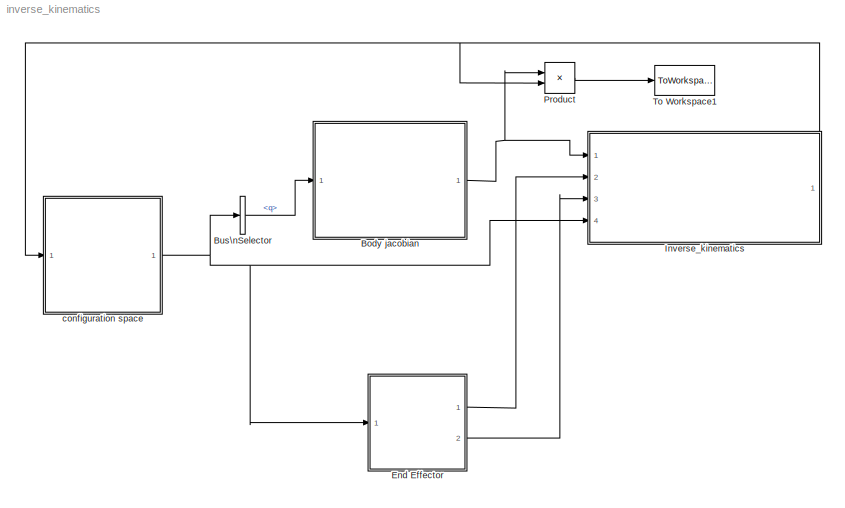
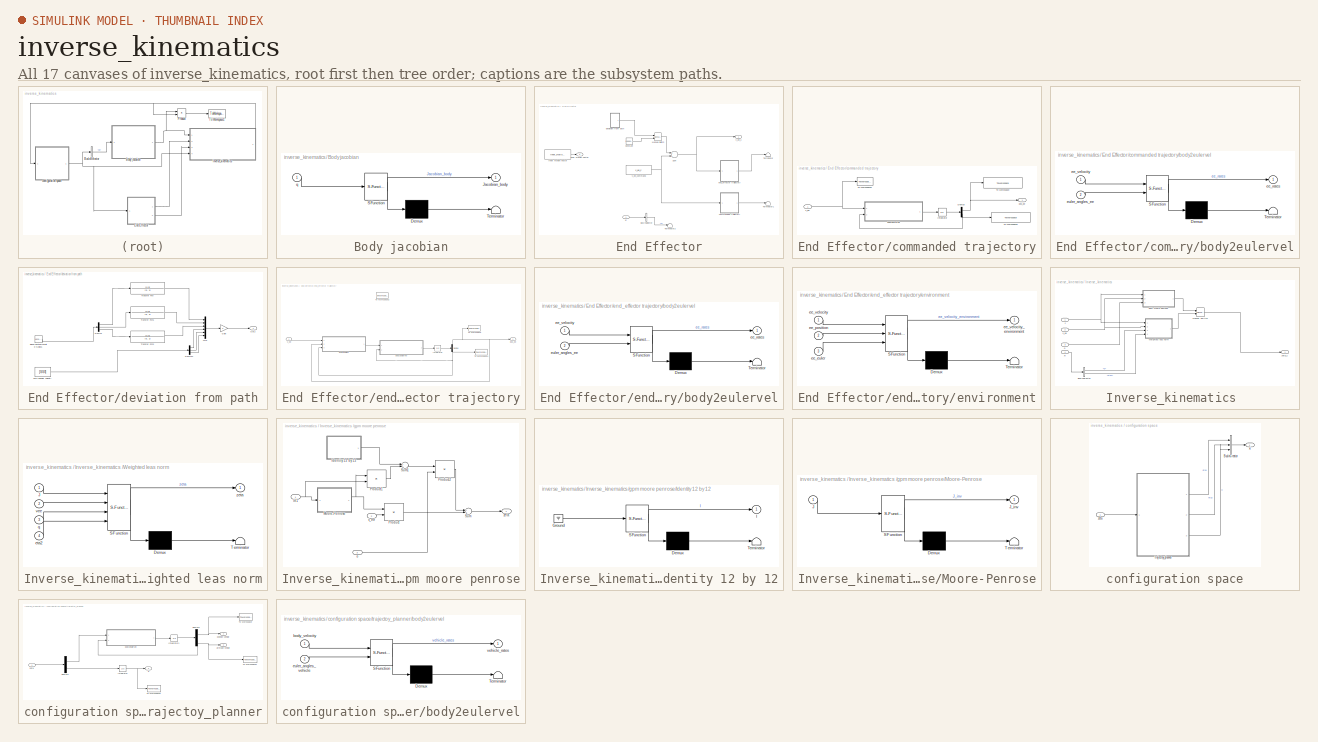
[diagram: thumbnail index - all 17 canvases of the model, root first then tree order]
MODEL inverse_kinematics
KIND model
BLOCK [SubSystem] Body jacobian
  ErrorFcn = Stateflow.Translate.translate
  FunctionWithSeparateData = off
  MaskDescription = Embedded MATLAB block
  MaskDisplay = bgColor = Simulink.Root.ColorString2Rgb(get_param(gcbh, 'BackgroundColor')); image(imread('private/eml_membrane_16.png','png','BackgroundColor',bgColor(1:3)),'center'); disp([10 10 'fcn']);  <repeated x4 — deduplicated; at blocks: Body jacobian, body2eulervel>
  MaskHideContents = off
  MaskIconFrame = on
  MaskIconOpaque = off
  MaskIconRotate = none
  MaskIconUnits = normalized
  MaskPortRotate = default
  MaskSelfModifiable = on
  MaskType = Stateflow
  MinAlgLoopOccurrences = off
  Opaque = off
  PermitHierarchicalResolution = ExplicitOnly
  Ports = [1, 1]
  PropExecContextOutsideSubsystem = off
  RTWSystemCode = Auto
  RequestExecContextInheritance = off
  SFBlockType = MATLAB Function
  SID = 4
  TreatAsAtomicUnit = on
BLOCK [Demux] Body jacobian/ Demux 
  Outputs = 1
  Ports = [1, 1]
  SID = 4::20
BLOCK [S-Function] Body jacobian/ SFunction 
  EnableBusSupport = on
  FunctionName = sf_sfun
  PortCounts = [1 2]
  Ports = [1, 2]
  SID = 4::19
  Tag = Stateflow S-Function inverse_kinematics 2
BLOCK [Terminator] Body jacobian/ Terminator 
  SID = 4::22
BLOCK [Outport] Body jacobian/Jacobian_body
  IconDisplay = Port number
  SID = 4::5
BLOCK [Inport] Body jacobian/q
  IconDisplay = Port number
  SID = 4::1
BLOCK [BusSelector] Bus\nSelector
  OutputSignals = q
  Ports = [1, 1]
  SID = 71
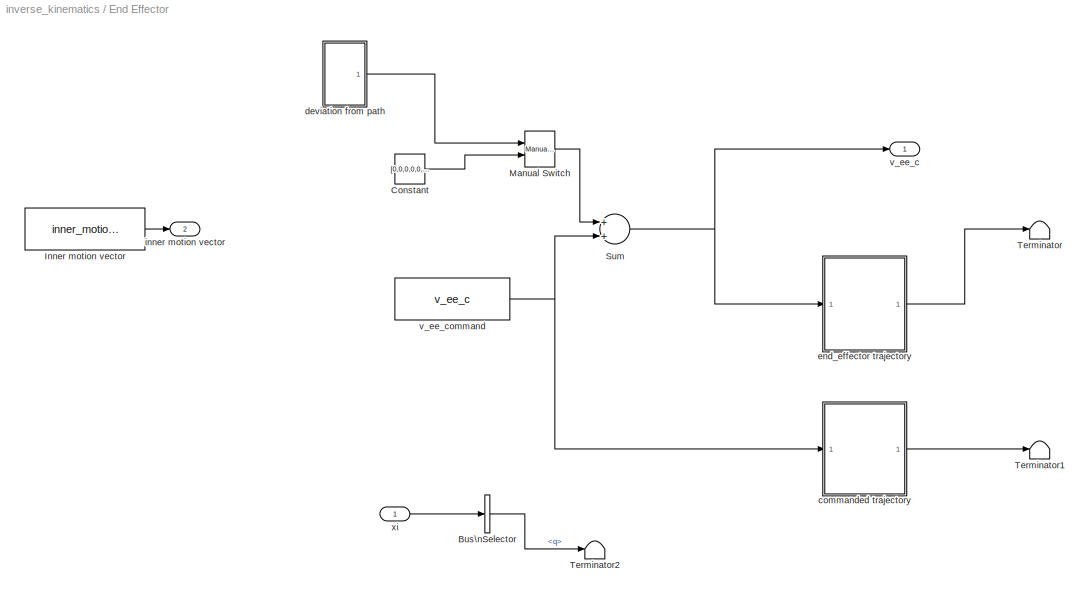
BLOCK [SubSystem] End Effector
  FunctionWithSeparateData = off
  MaskHideContents = off
  MinAlgLoopOccurrences = off
  Opaque = off
  Ports = [1, 2]
  PropExecContextOutsideSubsystem = off
  RTWSystemCode = Auto
  RequestExecContextInheritance = off
  SID = 165
BLOCK [BusSelector] End Effector/Bus\nSelector
  OutputSignals = q
  Ports = [1, 1]
  SID = 219
BLOCK [Constant] End Effector/Constant
  SID = 216
  Value = [0,0,0,0,0,0]
BLOCK [Constant] End Effector/Inner motion vector
  SID = 115
  Value = inner_motion_vec
BLOCK [Reference] End Effector/Manual Switch  REF=simulink/Signal\nRouting/Manual Switch
  Ports = [2, 1]
  SID = 217
  SourceBlock = simulink/Signal\nRouting/Manual Switch
  SourceType = Manual Switch
  action = 0
  sw = 0
  varsize = off
BLOCK [Sum] End Effector/Sum
  InputSameDT = off
  OutDataTypeStr = Inherit: Inherit via internal rule
  Ports = [2, 1]
  SID = 172
  SaturateOnIntegerOverflow = off
BLOCK [Terminator] End Effector/Terminator
  SID = 184
BLOCK [Terminator] End Effector/Terminator1
  SID = 185
BLOCK [Terminator] End Effector/Terminator2
  SID = 221
BLOCK [SubSystem] End Effector/commanded trajectory
  FunctionWithSeparateData = off
  MaskHideContents = off
  MinAlgLoopOccurrences = off
  Opaque = off
  Ports = [1, 1]
  PropExecContextOutsideSubsystem = off
  RTWSystemCode = Auto
  RequestExecContextInheritance = off
  SID = 175
BLOCK [Demux] End Effector/commanded trajectory/Demux
  DisplayOption = bar
  Outputs = 2
  Ports = [1, 2]
  SID = 177
BLOCK [Integrator] End Effector/commanded trajectory/Integrator
  InitialCondition = initial_ee_pose
  Ports = [1, 1]
  SID = 178
BLOCK [ToWorkspace] End Effector/commanded trajectory/To Workspace
  MaxDataPoints = inf
  Ports = [1]
  SID = 179
  SampleTime = -1
  SaveFormat = Structure With Time
  VariableName = ee_pos_commanded_s
BLOCK [ToWorkspace] End Effector/commanded trajectory/To Workspace1
  MaxDataPoints = inf
  Ports = [1]
  SID = 180
  SampleTime = -1
  SaveFormat = Structure With Time
  VariableName = ee_euler_commanded_s
BLOCK [ToWorkspace] End Effector/commanded trajectory/To Workspace2
  MaxDataPoints = inf
  Ports = [1]
  SID = 181
  SampleTime = -1
  SaveFormat = Structure With Time
  VariableName = ee_vel_commanded_s
BLOCK [SubSystem] End Effector/commanded trajectory/body2eulervel
  ErrorFcn = Stateflow.Translate.translate
  FunctionWithSeparateData = off
  MaskDescription = Embedded MATLAB block
  MaskHideContents = off
  MaskIconFrame = on
  MaskIconOpaque = off
  MaskIconRotate = none
  MaskIconUnits = normalized
  MaskPortRotate = default
  MaskSelfModifiable = on
  MaskType = Stateflow
  MinAlgLoopOccurrences = off
  Opaque = off
  PermitHierarchicalResolution = ExplicitOnly
  Ports = [2, 1]
  PropExecContextOutsideSubsystem = off
  RTWSystemCode = Auto
  RequestExecContextInheritance = off
  SFBlockType = MATLAB Function
  SID = 182
  TreatAsAtomicUnit = on
BLOCK [Demux] End Effector/commanded trajectory/body2eulervel/ Demux 
  Outputs = 1
  Ports = [1, 1]
  SID = 182::20
BLOCK [S-Function] End Effector/commanded trajectory/body2eulervel/ SFunction 
  EnableBusSupport = on
  FunctionName = sf_sfun
  PortCounts = [2 2]
  Ports = [2, 2]
  SID = 182::19
  Tag = Stateflow S-Function inverse_kinematics 7
BLOCK [Terminator] End Effector/commanded trajectory/body2eulervel/ Terminator 
  SID = 182::22
BLOCK [Outport] End Effector/commanded trajectory/body2eulervel/ee_rates
  IconDisplay = Port number
  SID = 182::5
BLOCK [Inport] End Effector/commanded trajectory/body2eulervel/ee_velocity
  IconDisplay = Port number
  SID = 182::1
BLOCK [Inport] End Effector/commanded trajectory/body2eulervel/euler_angles_ee
  IconDisplay = Port number
  Port = 2
  SID = 182::23
BLOCK [Outport] End Effector/commanded trajectory/pos_ee
  IconDisplay = Port number
  SID = 183
BLOCK [Inport] End Effector/commanded trajectory/v_ee
  IconDisplay = Port number
  SID = 176
BLOCK [SubSystem] End Effector/deviation from path
  FunctionWithSeparateData = off
  MaskHideContents = off
  MinAlgLoopOccurrences = off
  Opaque = off
  Ports = [0, 1]
  PropExecContextOutsideSubsystem = off
  RTWSystemCode = Auto
  RequestExecContextInheritance = off
  SID = 192
BLOCK [Reference] End Effector/deviation from path/Band-Limited\nWhite Noise1  REF=simulink/Sources/Band-Limited\nWhite Noise
  Cov = [0.1;0.1;0.05]
  Ports = [0, 1]
  SID = 186
  SourceBlock = simulink/Sources/Band-Limited\nWhite Noise
  SourceType = Band-Limited White Noise.
  Ts = 0.001
  VectorParams1D = on
  seed = [23341]
BLOCK [Demux] End Effector/deviation from path/Demux
  DisplayOption = bar
  Outputs = 3
  Ports = [1, 3]
  SID = 189
BLOCK [Demux] End Effector/deviation from path/Demux1
  DisplayOption = bar
  Outputs = 3
  Ports = [1, 3]
  SID = 205
BLOCK [Gain] End Effector/deviation from path/Gain
  OutDataTypeStr = Inherit: Inherit via internal rule
  ParamDataTypeStr = Inherit: Inherit via internal rule
  SID = 206
  SaturateOnIntegerOverflow = off
BLOCK [Mux] End Effector/deviation from path/Mux
  DisplayOption = bar
  Inputs = 6
  Ports = [6, 1]
  SID = 190
BLOCK [Outport] End Effector/deviation from path/Out2
  IconDisplay = Port number
  SID = 195
BLOCK [TransferFcn] End Effector/deviation from path/Transfer Fcn
  Denominator = [5, 1]
  Numerator = [0.5]
  SID = 171
BLOCK [TransferFcn] End Effector/deviation from path/Transfer Fcn1
  Denominator = [5, 1]
  Numerator = [0.5]
  SID = 212
BLOCK [TransferFcn] End Effector/deviation from path/Transfer Fcn2
  Denominator = [5, 1]
  Numerator = [0.5]
  SID = 213
BLOCK [Constant] End Effector/deviation from path/zero angular velocity
  SID = 204
  Value = [0;0;0]
BLOCK [SubSystem] End Effector/end_effector trajectory
  FunctionWithSeparateData = off
  MaskHideContents = off
  MinAlgLoopOccurrences = off
  Opaque = off
  Ports = [1, 1]
  PropExecContextOutsideSubsystem = off
  RTWSystemCode = Auto
  RequestExecContextInheritance = off
  SID = 132
BLOCK [Demux] End Effector/end_effector trajectory/Demux
  DisplayOption = bar
  Outputs = 2
  Ports = [1, 2]
  SID = 135
BLOCK [Integrator] End Effector/end_effector trajectory/Integrator
  InitialCondition = initial_ee_pose
  Ports = [1, 1]
  SID = 136
BLOCK [ToWorkspace] End Effector/end_effector trajectory/To Workspace
  MaxDataPoints = inf
  Ports = [1]
  SID = 138
  SampleTime = -1
  SaveFormat = Structure With Time
  VariableName = ee_pos_s
BLOCK [ToWorkspace] End Effector/end_effector trajectory/To Workspace1
  MaxDataPoints = inf
  Ports = [1]
  SID = 139
  SampleTime = -1
  SaveFormat = Structure With Time
  VariableName = ee_euler_s
BLOCK [ToWorkspace] End Effector/end_effector trajectory/To Workspace2
  MaxDataPoints = inf
  Ports = [1]
  SID = 140
  SampleTime = -1
  SaveFormat = Structure With Time
  VariableName = ee_vel_s
BLOCK [SubSystem] End Effector/end_effector trajectory/body2eulervel
  ErrorFcn = Stateflow.Translate.translate
  FunctionWithSeparateData = off
  MaskDescription = Embedded MATLAB block
  MaskHideContents = off
  MaskIconFrame = on
  MaskIconOpaque = off
  MaskIconRotate = none
  MaskIconUnits = normalized
  MaskPortRotate = default
  MaskSelfModifiable = on
  MaskType = Stateflow
  MinAlgLoopOccurrences = off
  Opaque = off
  PermitHierarchicalResolution = ExplicitOnly
  Ports = [2, 1]
  PropExecContextOutsideSubsystem = off
  RTWSystemCode = Auto
  RequestExecContextInheritance = off
  SFBlockType = MATLAB Function
  SID = 141
  TreatAsAtomicUnit = on
BLOCK [Demux] End Effector/end_effector trajectory/body2eulervel/ Demux 
  Outputs = 1
  Ports = [1, 1]
  SID = 141::20
BLOCK [S-Function] End Effector/end_effector trajectory/body2eulervel/ SFunction 
  EnableBusSupport = on
  FunctionName = sf_sfun
  PortCounts = [2 2]
  Ports = [2, 2]
  SID = 141::19
  Tag = Stateflow S-Function inverse_kinematics 5
BLOCK [Terminator] End Effector/end_effector trajectory/body2eulervel/ Terminator 
  SID = 141::22
BLOCK [Outport] End Effector/end_effector trajectory/body2eulervel/ee_rates
  IconDisplay = Port number
  SID = 141::5
BLOCK [Inport] End Effector/end_effector trajectory/body2eulervel/ee_velocity
  IconDisplay = Port number
  SID = 141::1
BLOCK [Inport] End Effector/end_effector trajectory/body2eulervel/euler_angles_ee
  IconDisplay = Port number
  Port = 2
  SID = 141::23
BLOCK [SubSystem] End Effector/end_effector trajectory/environment
  ErrorFcn = Stateflow.Translate.translate
  FunctionWithSeparateData = off
  MaskDescription = Embedded MATLAB block
  MaskDisplay = bgColor = Simulink.Root.ColorString2Rgb(get_param(gcbh, 'BackgroundColor')); image(imread('private/eml_membrane_16.png','png','BackgroundColor',bgColor(1:3)),'center'); disp([10 10 'velocity']);
  MaskHideContents = off
  MaskIconFrame = on
  MaskIconOpaque = off
  MaskIconRotate = none
  MaskIconUnits = normalized
  MaskPortRotate = default
  MaskSelfModifiable = on
  MaskType = Stateflow
  MinAlgLoopOccurrences = off
  Opaque = off
  PermitHierarchicalResolution = ExplicitOnly
  Ports = [3, 1]
  PropExecContextOutsideSubsystem = off
  RTWSystemCode = Auto
  RequestExecContextInheritance = off
  SFBlockType = MATLAB Function
  SID = 214
  TreatAsAtomicUnit = on
BLOCK [Demux] End Effector/end_effector trajectory/environment/ Demux 
  Outputs = 1
  Ports = [1, 1]
  SID = 214::20
BLOCK [S-Function] End Effector/end_effector trajectory/environment/ SFunction 
  EnableBusSupport = on
  FunctionName = sf_sfun
  PortCounts = [3 2]
  Ports = [3, 2]
  SID = 214::19
  Tag = Stateflow S-Function inverse_kinematics 8
BLOCK [Terminator] End Effector/end_effector trajectory/environment/ Terminator 
  SID = 214::22
BLOCK [Inport] End Effector/end_effector trajectory/environment/ee_euler
  IconDisplay = Port number
  Port = 3
  SID = 214::28
BLOCK [Inport] End Effector/end_effector trajectory/environment/ee_position
  IconDisplay = Port number
  Port = 2
  SID = 214::26
BLOCK [Inport] End Effector/end_effector trajectory/environment/ee_velocity
  IconDisplay = Port number
  SID = 214::25
BLOCK [Outport] End Effector/end_effector trajectory/environment/ee_velocity_environment
  IconDisplay = Port number
  SID = 214::27
BLOCK [Outport] End Effector/end_effector trajectory/pos_ee
  IconDisplay = Port number
  SID = 173
BLOCK [Inport] End Effector/end_effector trajectory/v_ee
  IconDisplay = Port number
  SID = 134
BLOCK [Outport] End Effector/inner motion vector
  IconDisplay = Port number
  Port = 2
  SID = 167
BLOCK [Outport] End Effector/v_ee_c
  IconDisplay = Port number
  SID = 166
BLOCK [Constant] End Effector/v_ee_command
  SID = 103
  Value = v_ee_c
BLOCK [Inport] End Effector/xi
  IconDisplay = Port number
  SID = 218
BLOCK [SubSystem] Inverse_kinematics 
  FunctionWithSeparateData = off
  MaskHideContents = off
  MinAlgLoopOccurrences = off
  Opaque = off
  Ports = [4, 1]
  PropExecContextOutsideSubsystem = off
  RTWSystemCode = Auto
  RequestExecContextInheritance = off
  SID = 111
BLOCK [BusSelector] Inverse_kinematics /Bus\nSelector
  OutputSignals = q,eta2
  Ports = [1, 2]
  SID = 154
BLOCK [Inport] Inverse_kinematics /J
  IconDisplay = Port number
  SID = 112
BLOCK [Reference] Inverse_kinematics /Manual Switch  REF=simulink/Signal\nRouting/Manual Switch
  Ports = [2, 1]
  SID = 152
  SourceBlock = simulink/Signal\nRouting/Manual Switch
  SourceType = Manual Switch
  action = 0
  sw = 0
  varsize = off
BLOCK [SubSystem] Inverse_kinematics /Weighted leas norm
  ErrorFcn = Stateflow.Translate.translate
  FunctionWithSeparateData = off
  MaskDescription = Embedded MATLAB block
  MaskDisplay = bgColor = Simulink.Root.ColorString2Rgb(get_param(gcbh, 'BackgroundColor')); image(imread('private/eml_membrane_16.png','png','BackgroundColor',bgColor(1:3)),'center'); disp([10 10 'wln']);
  MaskHideContents = off
  MaskIconFrame = on
  MaskIconOpaque = off
  MaskIconRotate = none
  MaskIconUnits = normalized
  MaskPortRotate = default
  MaskSelfModifiable = on
  MaskType = Stateflow
  MinAlgLoopOccurrences = off
  Opaque = off
  PermitHierarchicalResolution = ExplicitOnly
  Ports = [4, 1]
  PropExecContextOutsideSubsystem = off
  RTWSystemCode = Auto
  RequestExecContextInheritance = off
  SFBlockType = MATLAB Function
  SID = 151
  TreatAsAtomicUnit = on
BLOCK [Demux] Inverse_kinematics /Weighted leas norm/ Demux 
  Outputs = 1
  Ports = [1, 1]
  SID = 151::20
BLOCK [S-Function] Inverse_kinematics /Weighted leas norm/ SFunction 
  EnableBusSupport = on
  FunctionName = sf_sfun
  PortCounts = [4 2]
  Ports = [4, 2]
  SID = 151::19
  Tag = Stateflow S-Function inverse_kinematics 6
BLOCK [Terminator] Inverse_kinematics /Weighted leas norm/ Terminator 
  SID = 151::22
BLOCK [Inport] Inverse_kinematics /Weighted leas norm/J
  IconDisplay = Port number
  SID = 151::1
BLOCK [Inport] Inverse_kinematics /Weighted leas norm/eta2
  IconDisplay = Port number
  Port = 4
  SID = 151::25
BLOCK [Inport] Inverse_kinematics /Weighted leas norm/q
  IconDisplay = Port number
  Port = 3
  SID = 151::24
BLOCK [Inport] Inverse_kinematics /Weighted leas norm/vee
  IconDisplay = Port number
  Port = 2
  SID = 151::23
BLOCK [Outport] Inverse_kinematics /Weighted leas norm/zeta
  IconDisplay = Port number
  SID = 151::5
BLOCK [SubSystem] Inverse_kinematics /gpm moore penrose
  FunctionWithSeparateData = off
  MaskHideContents = off
  MinAlgLoopOccurrences = off
  Opaque = off
  Ports = [3, 1]
  PropExecContextOutsideSubsystem = off
  RTWSystemCode = Auto
  RequestExecContextInheritance = off
  SID = 146
BLOCK [SubSystem] Inverse_kinematics /gpm moore penrose/Identity 12 by 12
  ErrorFcn = Stateflow.Translate.translate
  FunctionWithSeparateData = off
  MaskDescription = Embedded MATLAB block
  MaskDisplay = bgColor = Simulink.Root.ColorString2Rgb(get_param(gcbh, 'BackgroundColor')); image(imread('private/eml_membrane_16.png','png','BackgroundColor',bgColor(1:3)),'center'); disp([10 10 'Identity_mat']);
  MaskHideContents = off
  MaskIconFrame = on
  MaskIconOpaque = off
  MaskIconRotate = none
  MaskIconUnits = normalized
  MaskPortRotate = default
  MaskSelfModifiable = on
  MaskType = Stateflow
  MinAlgLoopOccurrences = off
  Opaque = off
  PermitHierarchicalResolution = ExplicitOnly
  Ports = [0, 1]
  PropExecContextOutsideSubsystem = off
  RTWSystemCode = Auto
  RequestExecContextInheritance = off
  SFBlockType = MATLAB Function
  SID = 106
  TreatAsAtomicUnit = on
BLOCK [Demux] Inverse_kinematics /gpm moore penrose/Identity 12 by 12/ Demux 
  Outputs = 1
  Ports = [1, 1]
  SID = 106::20
BLOCK [Ground] Inverse_kinematics /gpm moore penrose/Identity 12 by 12/ Ground 
  SID = 106::23
BLOCK [S-Function] Inverse_kinematics /gpm moore penrose/Identity 12 by 12/ SFunction 
  EnableBusSupport = on
  FunctionName = sf_sfun
  PortCounts = [1 2]
  Ports = [1, 2]
  SID = 106::19
  Tag = Stateflow S-Function inverse_kinematics 1
BLOCK [Terminator] Inverse_kinematics /gpm moore penrose/Identity 12 by 12/ Terminator 
  SID = 106::22
BLOCK [Outport] Inverse_kinematics /gpm moore penrose/Identity 12 by 12/I
  IconDisplay = Port number
  SID = 106::5
BLOCK [Inport] Inverse_kinematics /gpm moore penrose/In1
  IconDisplay = Port number
  SID = 147
BLOCK [SubSystem] Inverse_kinematics /gpm moore penrose/Moore-Penrose
  ErrorFcn = Stateflow.Translate.translate
  FunctionWithSeparateData = off
  MaskDescription = Embedded MATLAB block
  MaskDisplay = bgColor = Simulink.Root.ColorString2Rgb(get_param(gcbh, 'BackgroundColor')); image(imread('private/eml_membrane_16.png','png','BackgroundColor',bgColor(1:3)),'center'); disp([10 10 'moore_penrose']);
  MaskHideContents = off
  MaskIconFrame = on
  MaskIconOpaque = off
  MaskIconRotate = none
  MaskIconUnits = normalized
  MaskPortRotate = default
  MaskSelfModifiable = on
  MaskType = Stateflow
  MinAlgLoopOccurrences = off
  Opaque = off
  PermitHierarchicalResolution = ExplicitOnly
  Ports = [1, 1]
  PropExecContextOutsideSubsystem = off
  RTWSystemCode = Auto
  RequestExecContextInheritance = off
  SFBlockType = MATLAB Function
  SID = 102
  TreatAsAtomicUnit = on
BLOCK [Demux] Inverse_kinematics /gpm moore penrose/Moore-Penrose/ Demux 
  Outputs = 1
  Ports = [1, 1]
  SID = 102::20
BLOCK [S-Function] Inverse_kinematics /gpm moore penrose/Moore-Penrose/ SFunction 
  EnableBusSupport = on
  FunctionName = sf_sfun
  PortCounts = [1 2]
  Ports = [1, 2]
  SID = 102::19
  Tag = Stateflow S-Function inverse_kinematics 4
BLOCK [Terminator] Inverse_kinematics /gpm moore penrose/Moore-Penrose/ Terminator 
  SID = 102::22
BLOCK [Inport] Inverse_kinematics /gpm moore penrose/Moore-Penrose/J
  IconDisplay = Port number
  SID = 102::1
BLOCK [Outport] Inverse_kinematics /gpm moore penrose/Moore-Penrose/J_inv
  IconDisplay = Port number
  SID = 102::5
BLOCK [Product] Inverse_kinematics /gpm moore penrose/Product
  InputSameDT = off
  Multiplication = Matrix(*)
  OutDataTypeStr = Inherit: Inherit via internal rule
  Ports = [2, 1]
  SID = 104
  SaturateOnIntegerOverflow = off
BLOCK [Product] Inverse_kinematics /gpm moore penrose/Product1
  InputSameDT = off
  Multiplication = Matrix(*)
  OutDataTypeStr = Inherit: Inherit via internal rule
  Ports = [2, 1]
  SID = 108
  SaturateOnIntegerOverflow = off
BLOCK [Product] Inverse_kinematics /gpm moore penrose/Product2
  InputSameDT = off
  Multiplication = Matrix(*)
  OutDataTypeStr = Inherit: Inherit via internal rule
  Ports = [2, 1]
  SID = 109
  SaturateOnIntegerOverflow = off
BLOCK [Sum] Inverse_kinematics /gpm moore penrose/Sum
  InputSameDT = off
  OutDataTypeStr = Inherit: Inherit via internal rule
  Ports = [2, 1]
  SID = 105
  SaturateOnIntegerOverflow = off
BLOCK [Sum] Inverse_kinematics /gpm moore penrose/Sum1
  InputSameDT = off
  Inputs = +-
  OutDataTypeStr = Inherit: Inherit via internal rule
  Ports = [2, 1]
  SID = 107
  SaturateOnIntegerOverflow = off
BLOCK [Inport] Inverse_kinematics /gpm moore penrose/o
  IconDisplay = Port number
  Port = 3
  SID = 149
BLOCK [Inport] Inverse_kinematics /gpm moore penrose/v_ee
  IconDisplay = Port number
  Port = 2
  SID = 148
BLOCK [Outport] Inverse_kinematics /gpm moore penrose/zeta
  IconDisplay = Port number
  SID = 150
BLOCK [Inport] Inverse_kinematics /o
  IconDisplay = Port number
  Port = 3
  SID = 117
BLOCK [Inport] Inverse_kinematics /v_ee
  IconDisplay = Port number
  Port = 2
  SID = 114
BLOCK [Inport] Inverse_kinematics /xi
  IconDisplay = Port number
  Port = 4
  SID = 153
BLOCK [Outport] Inverse_kinematics /zeta_c
  IconDisplay = Port number
  SID = 113
BLOCK [Product] Product
  InputSameDT = off
  Multiplication = Matrix(*)
  OutDataTypeStr = Inherit: Inherit via internal rule
  Ports = [2, 1]
  SID = 142
  SaturateOnIntegerOverflow = off
BLOCK [ToWorkspace] To Workspace1
  MaxDataPoints = inf
  Ports = [1]
  SID = 144
  SampleTime = -1
  SaveFormat = Structure With Time
  VariableName = v_ee_res
BLOCK [SubSystem] configuration space
  FunctionWithSeparateData = off
  MaskHideContents = off
  MinAlgLoopOccurrences = off
  Opaque = off
  Ports = [1, 1]
  PropExecContextOutsideSubsystem = off
  RTWSystemCode = Auto
  RequestExecContextInheritance = off
  SID = 11
BLOCK [BusCreator] configuration space/Bus\nCreator
  DisplayOption = bar
  Inputs = 3
  Ports = [3, 1]
  SID = 68
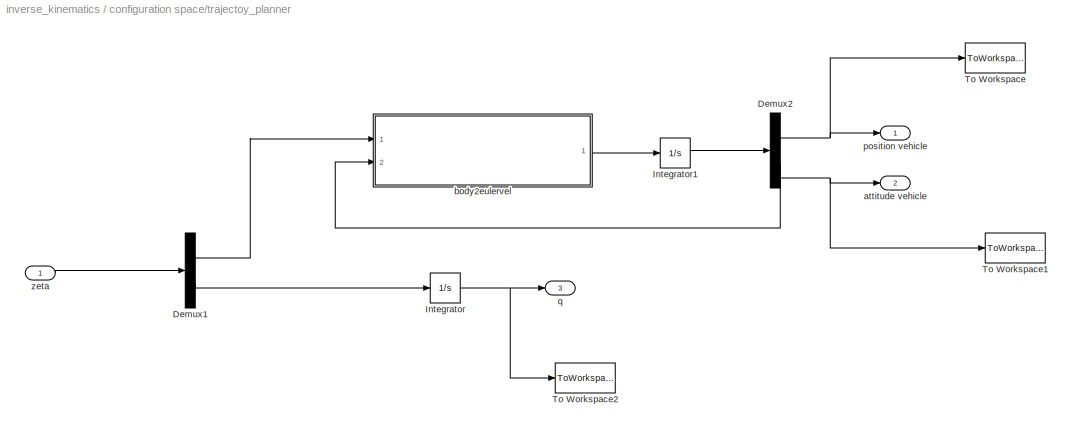
BLOCK [SubSystem] configuration space/trajectoy_planner
  FunctionWithSeparateData = off
  MaskHideContents = off
  MinAlgLoopOccurrences = off
  Opaque = off
  Ports = [1, 3]
  PropExecContextOutsideSubsystem = off
  RTWSystemCode = Auto
  RequestExecContextInheritance = off
  SID = 53
BLOCK [Demux] configuration space/trajectoy_planner/Demux1
  DisplayOption = bar
  Outputs = 2
  Ports = [1, 2]
  SID = 47
BLOCK [Demux] configuration space/trajectoy_planner/Demux2
  DisplayOption = bar
  Outputs = 2
  Ports = [1, 2]
  SID = 59
BLOCK [Integrator] configuration space/trajectoy_planner/Integrator
  InitialCondition = initial_q
  Ports = [1, 1]
  SID = 50
BLOCK [Integrator] configuration space/trajectoy_planner/Integrator1
  InitialCondition = initial_eta
  Ports = [1, 1]
  SID = 60
BLOCK [ToWorkspace] configuration space/trajectoy_planner/To Workspace
  MaxDataPoints = inf
  Ports = [1]
  SID = 82
  SampleTime = -1
  SaveFormat = Structure With Time
  VariableName = eta1_s
BLOCK [ToWorkspace] configuration space/trajectoy_planner/To Workspace1
  MaxDataPoints = inf
  Ports = [1]
  SID = 83
  SampleTime = -1
  SaveFormat = Structure With Time
  VariableName = eta2_s
BLOCK [ToWorkspace] configuration space/trajectoy_planner/To Workspace2
  MaxDataPoints = inf
  Ports = [1]
  SID = 84
  SampleTime = -1
  SaveFormat = Structure With Time
  VariableName = q_s
BLOCK [Outport] configuration space/trajectoy_planner/attitude vehicle
  IconDisplay = Port number
  Port = 2
  SID = 61
BLOCK [SubSystem] configuration space/trajectoy_planner/body2eulervel
  ErrorFcn = Stateflow.Translate.translate
  FunctionWithSeparateData = off
  MaskDescription = Embedded MATLAB block
  MaskHideContents = off
  MaskIconFrame = on
  MaskIconOpaque = off
  MaskIconRotate = none
  MaskIconUnits = normalized
  MaskPortRotate = default
  MaskSelfModifiable = on
  MaskType = Stateflow
  MinAlgLoopOccurrences = off
  Opaque = off
  PermitHierarchicalResolution = ExplicitOnly
  Ports = [2, 1]
  PropExecContextOutsideSubsystem = off
  RTWSystemCode = Auto
  RequestExecContextInheritance = off
  SFBlockType = MATLAB Function
  SID = 52
  TreatAsAtomicUnit = on
BLOCK [Demux] configuration space/trajectoy_planner/body2eulervel/ Demux 
  Outputs = 1
  Ports = [1, 1]
  SID = 52::20
BLOCK [S-Function] configuration space/trajectoy_planner/body2eulervel/ SFunction 
  EnableBusSupport = on
  FunctionName = sf_sfun
  PortCounts = [2 2]
  Ports = [2, 2]
  SID = 52::19
  Tag = Stateflow S-Function inverse_kinematics 3
BLOCK [Terminator] configuration space/trajectoy_planner/body2eulervel/ Terminator 
  SID = 52::22
BLOCK [Inport] configuration space/trajectoy_planner/body2eulervel/body_velocity
  IconDisplay = Port number
  SID = 52::1
BLOCK [Inport] configuration space/trajectoy_planner/body2eulervel/euler_angles_vehicle
  IconDisplay = Port number
  Port = 2
  SID = 52::23
BLOCK [Outport] configuration space/trajectoy_planner/body2eulervel/vehicle_rates
  IconDisplay = Port number
  SID = 52::5
BLOCK [Outport] configuration space/trajectoy_planner/position vehicle
  IconDisplay = Port number
  SID = 54
BLOCK [Outport] configuration space/trajectoy_planner/q
  IconDisplay = Port number
  Port = 3
  SID = 58
BLOCK [Inport] configuration space/trajectoy_planner/zeta
  IconDisplay = Port number
  SID = 130
BLOCK [Outport] configuration space/xi
  IconDisplay = Port number
  SID = 69
BLOCK [Inport] configuration space/zeta
  IconDisplay = Port number
  SID = 131
LINE Body jacobian/ Demux :1 -> Body jacobian/ Terminator :1
LINE Body jacobian/ SFunction :1 -> Body jacobian/ Demux :1
LINE Body jacobian/ SFunction :2 -> Body jacobian/Jacobian_body:1
LINE Body jacobian/q:1 -> Body jacobian/ SFunction :1
NET Body jacobian:1 -> Inverse_kinematics :1, Product:1
LINE Bus\nSelector:1 -> Body jacobian:1
LINE End Effector/Bus\nSelector:1 -> End Effector/Terminator2:1
LINE End Effector/Constant:1 -> End Effector/Manual Switch:2
LINE End Effector/Inner motion vector:1 -> End Effector/inner motion vector:1
LINE End Effector/Manual Switch:1 -> End Effector/Sum:1
NET End Effector/Sum:1 -> End Effector/end_effector trajectory:1, End Effector/v_ee_c:1
NET End Effector/commanded trajectory/Demux:1 -> End Effector/commanded trajectory/To Workspace:1, End Effector/commanded trajectory/pos_ee:1
NET End Effector/commanded trajectory/Demux:2 -> End Effector/commanded trajectory/To Workspace1:1, End Effector/commanded trajectory/body2eulervel:2
LINE End Effector/commanded trajectory/Integrator:1 -> End Effector/commanded trajectory/Demux:1
LINE End Effector/commanded trajectory/body2eulervel/ Demux :1 -> End Effector/commanded trajectory/body2eulervel/ Terminator :1
LINE End Effector/commanded trajectory/body2eulervel/ SFunction :1 -> End Effector/commanded trajectory/body2eulervel/ Demux :1
LINE End Effector/commanded trajectory/body2eulervel/ SFunction :2 -> End Effector/commanded trajectory/body2eulervel/ee_rates:1
LINE End Effector/commanded trajectory/body2eulervel/ee_velocity:1 -> End Effector/commanded trajectory/body2eulervel/ SFunction :1
LINE End Effector/commanded trajectory/body2eulervel/euler_angles_ee:1 -> End Effector/commanded trajectory/body2eulervel/ SFunction :2
LINE End Effector/commanded trajectory/body2eulervel:1 -> End Effector/commanded trajectory/Integrator:1
NET End Effector/commanded trajectory/v_ee:1 -> End Effector/commanded trajectory/To Workspace2:1, End Effector/commanded trajectory/body2eulervel:1
LINE End Effector/commanded trajectory:1 -> End Effector/Terminator1:1
LINE End Effector/deviation from path/Band-Limited\nWhite Noise1:1 -> End Effector/deviation from path/Demux:1
LINE End Effector/deviation from path/Demux1:1 -> End Effector/deviation from path/Mux:4
LINE End Effector/deviation from path/Demux1:2 -> End Effector/deviation from path/Mux:5
LINE End Effector/deviation from path/Demux1:3 -> End Effector/deviation from path/Mux:6
LINE End Effector/deviation from path/Demux:1 -> End Effector/deviation from path/Transfer Fcn:1
LINE End Effector/deviation from path/Demux:2 -> End Effector/deviation from path/Transfer Fcn1:1
LINE End Effector/deviation from path/Demux:3 -> End Effector/deviation from path/Transfer Fcn2:1
LINE End Effector/deviation from path/Gain:1 -> End Effector/deviation from path/Out2:1
LINE End Effector/deviation from path/Mux:1 -> End Effector/deviation from path/Gain:1
LINE End Effector/deviation from path/Transfer Fcn1:1 -> End Effector/deviation from path/Mux:2
LINE End Effector/deviation from path/Transfer Fcn2:1 -> End Effector/deviation from path/Mux:3
LINE End Effector/deviation from path/Transfer Fcn:1 -> End Effector/deviation from path/Mux:1
LINE End Effector/deviation from path/zero angular velocity:1 -> End Effector/deviation from path/Demux1:1
LINE End Effector/deviation from path:1 -> End Effector/Manual Switch:1
NET End Effector/end_effector trajectory/Demux:1 -> End Effector/end_effector trajectory/To Workspace:1, End Effector/end_effector trajectory/environment:2, End Effector/end_effector trajectory/pos_ee:1
NET End Effector/end_effector trajectory/Demux:2 -> End Effector/end_effector trajectory/To Workspace1:1, End Effector/end_effector trajectory/body2eulervel:2, End Effector/end_effector trajectory/environment:3
LINE End Effector/end_effector trajectory/Integrator:1 -> End Effector/end_effector trajectory/Demux:1
LINE End Effector/end_effector trajectory/body2eulervel/ Demux :1 -> End Effector/end_effector trajectory/body2eulervel/ Terminator :1
LINE End Effector/end_effector trajectory/body2eulervel/ SFunction :1 -> End Effector/end_effector trajectory/body2eulervel/ Demux :1
LINE End Effector/end_effector trajectory/body2eulervel/ SFunction :2 -> End Effector/end_effector trajectory/body2eulervel/ee_rates:1
LINE End Effector/end_effector trajectory/body2eulervel/ee_velocity:1 -> End Effector/end_effector trajectory/body2eulervel/ SFunction :1
LINE End Effector/end_effector trajectory/body2eulervel/euler_angles_ee:1 -> End Effector/end_effector trajectory/body2eulervel/ SFunction :2
LINE End Effector/end_effector trajectory/body2eulervel:1 -> End Effector/end_effector trajectory/Integrator:1
LINE End Effector/end_effector trajectory/environment/ Demux :1 -> End Effector/end_effector trajectory/environment/ Terminator :1
LINE End Effector/end_effector trajectory/environment/ SFunction :1 -> End Effector/end_effector trajectory/environment/ Demux :1
LINE End Effector/end_effector trajectory/environment/ SFunction :2 -> End Effector/end_effector trajectory/environment/ee_velocity_environment:1
LINE End Effector/end_effector trajectory/environment/ee_euler:1 -> End Effector/end_effector trajectory/environment/ SFunction :3
LINE End Effector/end_effector trajectory/environment/ee_position:1 -> End Effector/end_effector trajectory/environment/ SFunction :2
LINE End Effector/end_effector trajectory/environment/ee_velocity:1 -> End Effector/end_effector trajectory/environment/ SFunction :1
LINE End Effector/end_effector trajectory/environment:1 -> End Effector/end_effector trajectory/body2eulervel:1
LINE End Effector/end_effector trajectory/v_ee:1 -> End Effector/end_effector trajectory/environment:1
LINE End Effector/end_effector trajectory:1 -> End Effector/Terminator:1
NET End Effector/v_ee_command:1 -> End Effector/Sum:2, End Effector/commanded trajectory:1
LINE End Effector/xi:1 -> End Effector/Bus\nSelector:1
LINE End Effector:1 -> Inverse_kinematics :2
LINE End Effector:2 -> Inverse_kinematics :3
LINE Inverse_kinematics /Bus\nSelector:1 -> Inverse_kinematics /Weighted leas norm:3
LINE Inverse_kinematics /Bus\nSelector:2 -> Inverse_kinematics /Weighted leas norm:4
NET Inverse_kinematics /J:1 -> Inverse_kinematics /Weighted leas norm:1, Inverse_kinematics /gpm moore penrose:1
LINE Inverse_kinematics /Manual Switch:1 -> Inverse_kinematics /zeta_c:1
LINE Inverse_kinematics /Weighted leas norm/ Demux :1 -> Inverse_kinematics /Weighted leas norm/ Terminator :1
LINE Inverse_kinematics /Weighted leas norm/ SFunction :1 -> Inverse_kinematics /Weighted leas norm/ Demux :1
LINE Inverse_kinematics /Weighted leas norm/ SFunction :2 -> Inverse_kinematics /Weighted leas norm/zeta:1
LINE Inverse_kinematics /Weighted leas norm/J:1 -> Inverse_kinematics /Weighted leas norm/ SFunction :1
LINE Inverse_kinematics /Weighted leas norm/eta2:1 -> Inverse_kinematics /Weighted leas norm/ SFunction :4
LINE Inverse_kinematics /Weighted leas norm/q:1 -> Inverse_kinematics /Weighted leas norm/ SFunction :3
LINE Inverse_kinematics /Weighted leas norm/vee:1 -> Inverse_kinematics /Weighted leas norm/ SFunction :2
LINE Inverse_kinematics /Weighted leas norm:1 -> Inverse_kinematics /Manual Switch:2
LINE Inverse_kinematics /gpm moore penrose/Identity 12 by 12/ Demux :1 -> Inverse_kinematics /gpm moore penrose/Identity 12 by 12/ Terminator :1
LINE Inverse_kinematics /gpm moore penrose/Identity 12 by 12/ Ground :1 -> Inverse_kinematics /gpm moore penrose/Identity 12 by 12/ SFunction :1
LINE Inverse_kinematics /gpm moore penrose/Identity 12 by 12/ SFunction :1 -> Inverse_kinematics /gpm moore penrose/Identity 12 by 12/ Demux :1
LINE Inverse_kinematics /gpm moore penrose/Identity 12 by 12/ SFunction :2 -> Inverse_kinematics /gpm moore penrose/Identity 12 by 12/I:1
LINE Inverse_kinematics /gpm moore penrose/Identity 12 by 12:1 -> Inverse_kinematics /gpm moore penrose/Sum1:1
NET Inverse_kinematics /gpm moore penrose/In1:1 -> Inverse_kinematics /gpm moore penrose/Moore-Penrose:1, Inverse_kinematics /gpm moore penrose/Product1:2
LINE Inverse_kinematics /gpm moore penrose/Moore-Penrose/ Demux :1 -> Inverse_kinematics /gpm moore penrose/Moore-Penrose/ Terminator :1
LINE Inverse_kinematics /gpm moore penrose/Moore-Penrose/ SFunction :1 -> Inverse_kinematics /gpm moore penrose/Moore-Penrose/ Demux :1
LINE Inverse_kinematics /gpm moore penrose/Moore-Penrose/ SFunction :2 -> Inverse_kinematics /gpm moore penrose/Moore-Penrose/J_inv:1
LINE Inverse_kinematics /gpm moore penrose/Moore-Penrose/J:1 -> Inverse_kinematics /gpm moore penrose/Moore-Penrose/ SFunction :1
NET Inverse_kinematics /gpm moore penrose/Moore-Penrose:1 -> Inverse_kinematics /gpm moore penrose/Product1:1, Inverse_kinematics /gpm moore penrose/Product:1
LINE Inverse_kinematics /gpm moore penrose/Product1:1 -> Inverse_kinematics /gpm moore penrose/Sum1:2
LINE Inverse_kinematics /gpm moore penrose/Product2:1 -> Inverse_kinematics /gpm moore penrose/Sum:1
LINE Inverse_kinematics /gpm moore penrose/Product:1 -> Inverse_kinematics /gpm moore penrose/Sum:2
LINE Inverse_kinematics /gpm moore penrose/Sum1:1 -> Inverse_kinematics /gpm moore penrose/Product2:1
LINE Inverse_kinematics /gpm moore penrose/Sum:1 -> Inverse_kinematics /gpm moore penrose/zeta:1
LINE Inverse_kinematics /gpm moore penrose/o:1 -> Inverse_kinematics /gpm moore penrose/Product2:2
LINE Inverse_kinematics /gpm moore penrose/v_ee:1 -> Inverse_kinematics /gpm moore penrose/Product:2
LINE Inverse_kinematics /gpm moore penrose:1 -> Inverse_kinematics /Manual Switch:1
LINE Inverse_kinematics /o:1 -> Inverse_kinematics /gpm moore penrose:3
NET Inverse_kinematics /v_ee:1 -> Inverse_kinematics /Weighted leas norm:2, Inverse_kinematics /gpm moore penrose:2
LINE Inverse_kinematics /xi:1 -> Inverse_kinematics /Bus\nSelector:1
NET Inverse_kinematics :1 -> Product:2, configuration space:1
LINE Product:1 -> To Workspace1:1
LINE configuration space/Bus\nCreator:1 -> configuration space/xi:1
LINE configuration space/trajectoy_planner/Demux1:1 -> configuration space/trajectoy_planner/body2eulervel:1
LINE configuration space/trajectoy_planner/Demux1:2 -> configuration space/trajectoy_planner/Integrator:1
NET configuration space/trajectoy_planner/Demux2:1 -> configuration space/trajectoy_planner/To Workspace:1, configuration space/trajectoy_planner/position vehicle:1
NET configuration space/trajectoy_planner/Demux2:2 -> configuration space/trajectoy_planner/To Workspace1:1, configuration space/trajectoy_planner/attitude vehicle:1, configuration space/trajectoy_planner/body2eulervel:2
LINE configuration space/trajectoy_planner/Integrator1:1 -> configuration space/trajectoy_planner/Demux2:1
NET configuration space/trajectoy_planner/Integrator:1 -> configuration space/trajectoy_planner/To Workspace2:1, configuration space/trajectoy_planner/q:1
LINE configuration space/trajectoy_planner/body2eulervel/ Demux :1 -> configuration space/trajectoy_planner/body2eulervel/ Terminator :1
LINE configuration space/trajectoy_planner/body2eulervel/ SFunction :1 -> configuration space/trajectoy_planner/body2eulervel/ Demux :1
LINE configuration space/trajectoy_planner/body2eulervel/ SFunction :2 -> configuration space/trajectoy_planner/body2eulervel/vehicle_rates:1
LINE configuration space/trajectoy_planner/body2eulervel/body_velocity:1 -> configuration space/trajectoy_planner/body2eulervel/ SFunction :1
LINE configuration space/trajectoy_planner/body2eulervel/euler_angles_vehicle:1 -> configuration space/trajectoy_planner/body2eulervel/ SFunction :2
LINE configuration space/trajectoy_planner/body2eulervel:1 -> configuration space/trajectoy_planner/Integrator1:1
LINE configuration space/trajectoy_planner/zeta:1 -> configuration space/trajectoy_planner/Demux1:1
LINE configuration space/trajectoy_planner:1 -> configuration space/Bus\nCreator:1
LINE configuration space/trajectoy_planner:2 -> configuration space/Bus\nCreator:2
LINE configuration space/trajectoy_planner:3 -> configuration space/Bus\nCreator:3
LINE configuration space/zeta:1 -> configuration space/trajectoy_planner:1
NET configuration space:1 -> Bus\nSelector:1, End Effector:1, Inverse_kinematics :4
note: NET lines group one-source signal fan-out (src -> all destinations, sorted); 1:1 wires keep LINE
CHART Inverse_kinematics /gpm moore penrose/Identity 12 by 12 states=1 transitions=1
  STATE_LABEL 'eML_blk_kernel()'
CHART Body jacobian states=1 transitions=1
  STATE_LABEL 'eML_blk_kernel()'
CHART configuration space/trajectoy_planner/body2eulervel states=1 transitions=1
  STATE_LABEL 'eML_blk_kernel()'
CHART Inverse_kinematics /gpm moore penrose/Moore-Penrose states=1 transitions=1
  STATE_LABEL 'eML_blk_kernel()'
CHART End Effector/end_effector trajectory/body2eulervel states=1 transitions=1
  STATE_LABEL 'eML_blk_kernel()'
CHART Inverse_kinematics /Weighted leas norm states=1 transitions=1
  STATE_LABEL 'eML_blk_kernel()'
CHART End Effector/commanded trajectory/body2eulervel states=1 transitions=1
  STATE_LABEL 'eML_blk_kernel()'
CHART End Effector/end_effector trajectory/environment states=1 transitions=1
  STATE_LABEL 'eML_blk_kernel()'
